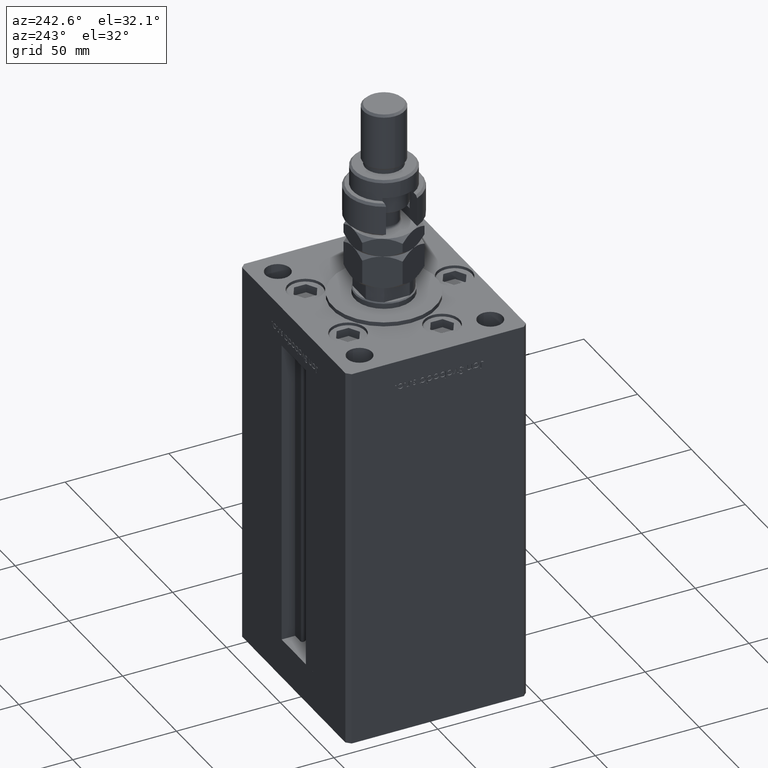
[diagram: clean part render]
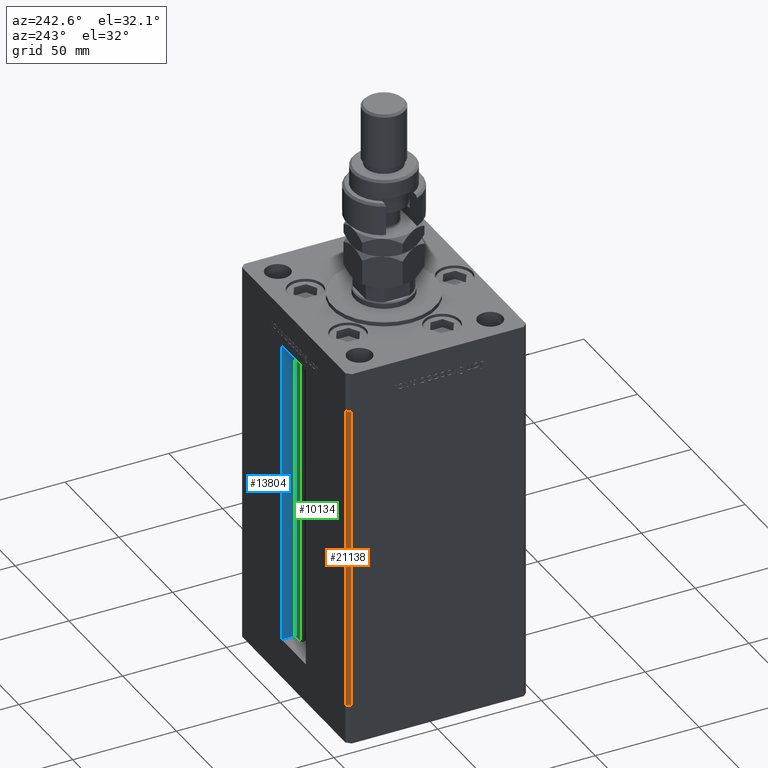
[diagram: same view with three faces highlighted in distinct colors, each labeled with its STEP entity id]
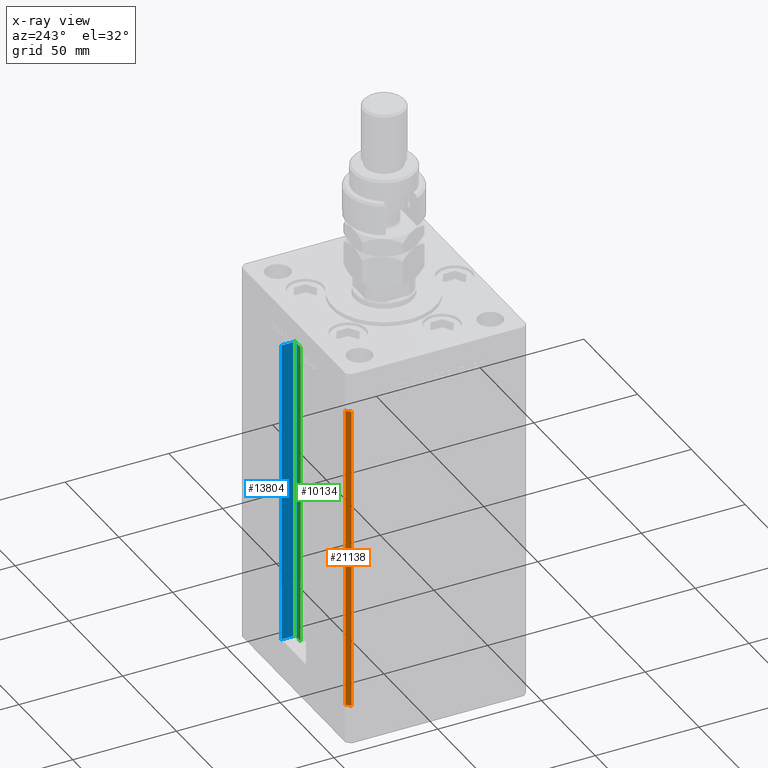
[diagram: x-ray of the same camera — body ghosted, the three highlighted faces saturated]
A machine part, auxiliary view with three faces highlighted in distinct colors.
The next image is the same camera in x-ray (body ghosted, the three faces saturated) — at least one of them is partly hidden behind the body in this view.
Their STEP definitions:

[orange] entity #21138 — the highlighted planar face has unit normal (0.7071, -0.7071, 0).
#1190 = DIRECTION ( 'NONE',  ( -0.000000000000000000, -0.000000000000000000, -1.000000000000000000 ) ) ;
#3993 = CARTESIAN_POINT ( 'NONE',  ( -50.00000000000001421, 41.49999999999999289, 0.000000000000000000 ) ) ;
#5504 = LINE ( 'NONE', #36056, #10196 ) ;
#6070 = ORIENTED_EDGE ( 'NONE', *, *, #31178, .F. ) ;
#7801 = EDGE_CURVE ( 'NONE', #24765, #50854, #10531, .T. ) ;
#10196 = VECTOR ( 'NONE', #47754, 1000.000000000000000 ) ;
#10531 = LINE ( 'NONE', #53069, #52205 ) ;
#11359 = EDGE_LOOP ( 'NONE', ( #31341, #14133, #6070, #18293 ) ) ;
#14133 = ORIENTED_EDGE ( 'NONE', *, *, #54902, .F. ) ;
#15982 = CARTESIAN_POINT ( 'NONE',  ( -48.00000000000000711, 43.50000000000000000, 148.5000000000000000 ) ) ;
#17386 = VECTOR ( 'NONE', #1190, 1000.000000000000000 ) ;
#18293 = ORIENTED_EDGE ( 'NONE', *, *, #35378, .T. ) ;
#18444 = CARTESIAN_POINT ( 'NONE',  ( -50.00000000000001421, 41.49999999999999289, 148.5000000000000000 ) ) ;
#21138 = ADVANCED_FACE ( 'NONE', ( #53545 ), #53811, .F. ) ;
#24362 = DIRECTION ( 'NONE',  ( -0.000000000000000000, -0.000000000000000000, -1.000000000000000000 ) ) ;
#24765 = VERTEX_POINT ( 'NONE', #34884 ) ;
#31178 = EDGE_CURVE ( 'NONE', #41898, #54899, #5504, .T. ) ;
#31341 = ORIENTED_EDGE ( 'NONE', *, *, #7801, .T. ) ;
#32693 = LINE ( 'NONE', #49938, #52450 ) ;
#33084 = AXIS2_PLACEMENT_3D ( 'NONE', #15982, #49359, #40994 ) ;
#34884 = CARTESIAN_POINT ( 'NONE',  ( -48.00000000000000711, 43.50000000000000000, 0.000000000000000000 ) ) ;
#35378 = EDGE_CURVE ( 'NONE', #41898, #24765, #32693, .T. ) ;
#36056 = CARTESIAN_POINT ( 'NONE',  ( -48.00000000000000711, 43.50000000000000000, 148.5000000000000000 ) ) ;
#38525 = CARTESIAN_POINT ( 'NONE',  ( -48.00000000000000711, 43.50000000000000000, 148.5000000000000000 ) ) ;
#40994 = DIRECTION ( 'NONE',  ( 0.7071067811865487940, 0.7071067811865463515, 0.000000000000000000 ) ) ;
#41898 = VERTEX_POINT ( 'NONE', #38525 ) ;
#43886 = DIRECTION ( 'NONE',  ( -0.7071067811865487940, -0.7071067811865463515, 0.000000000000000000 ) ) ;
#44262 = LINE ( 'NONE', #18444, #17386 ) ;
#47754 = DIRECTION ( 'NONE',  ( -0.7071067811865487940, -0.7071067811865463515, 0.000000000000000000 ) ) ;
#49359 = DIRECTION ( 'NONE',  ( 0.7071067811865463515, -0.7071067811865487940, 0.000000000000000000 ) ) ;
#49938 = CARTESIAN_POINT ( 'NONE',  ( -48.00000000000000711, 43.50000000000000000, 148.5000000000000000 ) ) ;
#50854 = VERTEX_POINT ( 'NONE', #3993 ) ;
#52093 = CARTESIAN_POINT ( 'NONE',  ( -50.00000000000001421, 41.49999999999999289, 148.5000000000000000 ) ) ;
#52205 = VECTOR ( 'NONE', #43886, 1000.000000000000000 ) ;
#52450 = VECTOR ( 'NONE', #24362, 1000.000000000000000 ) ;
#53069 = CARTESIAN_POINT ( 'NONE',  ( -48.00000000000000711, 43.50000000000000000, 0.000000000000000000 ) ) ;
#53545 = FACE_OUTER_BOUND ( 'NONE', #11359, .T. ) ;
#53811 = PLANE ( 'NONE',  #33084 ) ;
#54899 = VERTEX_POINT ( 'NONE', #52093 ) ;
#54902 = EDGE_CURVE ( 'NONE', #54899, #50854, #44262, .T. ) ;

[blue] entity #13804 — the highlighted planar face has unit normal (1, 0, 0).
#638 = LINE ( 'NONE', #47910, #9976 ) ;
#5230 = EDGE_LOOP ( 'NONE', ( #46722, #8976, #39250, #30753 ) ) ;
#6139 = CARTESIAN_POINT ( 'NONE',  ( 11.24999999999999822, 36.99999999999999289, 0.000000000000000000 ) ) ;
#7754 = VERTEX_POINT ( 'NONE', #26389 ) ;
#8929 = DIRECTION ( 'NONE',  ( 1.000000000000000000, -0.000000000000000000, 0.000000000000000000 ) ) ;
#8976 = ORIENTED_EDGE ( 'NONE', *, *, #44195, .F. ) ;
#9215 = DIRECTION ( 'NONE',  ( 0.000000000000000000, 0.000000000000000000, -1.000000000000000000 ) ) ;
#9976 = VECTOR ( 'NONE', #13746, 1000.000000000000000 ) ;
#13511 = VECTOR ( 'NONE', #31165, 1000.000000000000000 ) ;
#13746 = DIRECTION ( 'NONE',  ( 0.000000000000000000, 1.000000000000000000, 0.000000000000000000 ) ) ;
#13804 = ADVANCED_FACE ( 'NONE', ( #34788 ), #17833, .F. ) ;
#14960 = CARTESIAN_POINT ( 'NONE',  ( 11.24999999999999822, 36.99999999999999289, 148.5000000000000000 ) ) ;
#17411 = VERTEX_POINT ( 'NONE', #14960 ) ;
#17833 = PLANE ( 'NONE',  #25751 ) ;
#18862 = EDGE_CURVE ( 'NONE', #30732, #17411, #26653, .T. ) ;
#21376 = CARTESIAN_POINT ( 'NONE',  ( 11.24999999999999822, 36.99999999999999289, 0.000000000000000000 ) ) ;
#22376 = VECTOR ( 'NONE', #30968, 1000.000000000000000 ) ;
#23323 = EDGE_CURVE ( 'NONE', #7754, #30732, #39300, .T. ) ;
#25751 = AXIS2_PLACEMENT_3D ( 'NONE', #35069, #8929, #9215 ) ;
#26389 = CARTESIAN_POINT ( 'NONE',  ( 11.24999999999999822, 43.50000000000000000, 0.000000000000000000 ) ) ;
#26653 = LINE ( 'NONE', #51697, #29439 ) ;
#29439 = VECTOR ( 'NONE', #30277, 1000.000000000000000 ) ;
#30277 = DIRECTION ( 'NONE',  ( -0.000000000000000000, -1.000000000000000000, 0.000000000000000000 ) ) ;
#30732 = VERTEX_POINT ( 'NONE', #52001 ) ;
#30753 = ORIENTED_EDGE ( 'NONE', *, *, #18862, .F. ) ;
#30968 = DIRECTION ( 'NONE',  ( -0.000000000000000000, -0.000000000000000000, 1.000000000000000000 ) ) ;
#31165 = DIRECTION ( 'NONE',  ( -0.000000000000000000, -0.000000000000000000, 1.000000000000000000 ) ) ;
#34788 = FACE_OUTER_BOUND ( 'NONE', #5230, .T. ) ;
#35069 = CARTESIAN_POINT ( 'NONE',  ( 11.24999999999999822, 36.99999999999999289, 0.000000000000000000 ) ) ;
#39250 = ORIENTED_EDGE ( 'NONE', *, *, #44577, .T. ) ;
#39300 = LINE ( 'NONE', #47101, #22376 ) ;
#40319 = LINE ( 'NONE', #6139, #13511 ) ;
#44195 = EDGE_CURVE ( 'NONE', #53594, #7754, #638, .T. ) ;
#44577 = EDGE_CURVE ( 'NONE', #53594, #17411, #40319, .T. ) ;
#46722 = ORIENTED_EDGE ( 'NONE', *, *, #23323, .F. ) ;
#47101 = CARTESIAN_POINT ( 'NONE',  ( 11.24999999999999822, 43.50000000000000000, 0.000000000000000000 ) ) ;
#47910 = CARTESIAN_POINT ( 'NONE',  ( 11.24999999999999822, 36.99999999999999289, 0.000000000000000000 ) ) ;
#51697 = CARTESIAN_POINT ( 'NONE',  ( 11.24999999999999822, 0.000000000000000000, 148.5000000000000000 ) ) ;
#52001 = CARTESIAN_POINT ( 'NONE',  ( 11.24999999999999112, 43.50000000000000000, 148.5000000000000000 ) ) ;
#53594 = VERTEX_POINT ( 'NONE', #21376 ) ;

[green] entity #10134 — the highlighted planar face has unit normal (0, -1, 0).
#2707 = VECTOR ( 'NONE', #17848, 1000.000000000000000 ) ;
#3271 = LINE ( 'NONE', #54153, #5218 ) ;
#5218 = VECTOR ( 'NONE', #37719, 1000.000000000000000 ) ;
#6139 = CARTESIAN_POINT ( 'NONE',  ( 11.24999999999999822, 36.99999999999999289, 0.000000000000000000 ) ) ;
#6188 = ORIENTED_EDGE ( 'NONE', *, *, #44577, .F. ) ;
#6366 = EDGE_CURVE ( 'NONE', #51610, #53594, #3271, .T. ) ;
#7583 = DIRECTION ( 'NONE',  ( 0.000000000000000000, -1.000000000000000000, 0.000000000000000000 ) ) ;
#8582 = EDGE_LOOP ( 'NONE', ( #6188, #32230, #26747, #54674 ) ) ;
#9658 = AXIS2_PLACEMENT_3D ( 'NONE', #49565, #7583, #50114 ) ;
#10134 = ADVANCED_FACE ( 'NONE', ( #32594 ), #45656, .F. ) ;
#10292 = LINE ( 'NONE', #18906, #39048 ) ;
#13511 = VECTOR ( 'NONE', #31165, 1000.000000000000000 ) ;
#14960 = CARTESIAN_POINT ( 'NONE',  ( 11.24999999999999822, 36.99999999999999289, 148.5000000000000000 ) ) ;
#15008 = DIRECTION ( 'NONE',  ( -0.000000000000000000, -0.000000000000000000, 1.000000000000000000 ) ) ;
#16014 = CARTESIAN_POINT ( 'NONE',  ( 6.183333333333997928, 36.99999999999999289, 0.000000000000000000 ) ) ;
#17411 = VERTEX_POINT ( 'NONE', #14960 ) ;
#17848 = DIRECTION ( 'NONE',  ( -1.000000000000000000, 0.000000000000000000, 0.000000000000000000 ) ) ;
#18906 = CARTESIAN_POINT ( 'NONE',  ( 6.183333333333997928, 36.99999999999999289, 0.000000000000000000 ) ) ;
#21376 = CARTESIAN_POINT ( 'NONE',  ( 11.24999999999999822, 36.99999999999999289, 0.000000000000000000 ) ) ;
#26747 = ORIENTED_EDGE ( 'NONE', *, *, #35026, .T. ) ;
#31165 = DIRECTION ( 'NONE',  ( -0.000000000000000000, -0.000000000000000000, 1.000000000000000000 ) ) ;
#31446 = LINE ( 'NONE', #43130, #2707 ) ;
#32230 = ORIENTED_EDGE ( 'NONE', *, *, #6366, .F. ) ;
#32594 = FACE_OUTER_BOUND ( 'NONE', #8582, .T. ) ;
#35026 = EDGE_CURVE ( 'NONE', #51610, #39799, #10292, .T. ) ;
#37719 = DIRECTION ( 'NONE',  ( 1.000000000000000000, 0.000000000000000000, 0.000000000000000000 ) ) ;
#39048 = VECTOR ( 'NONE', #15008, 1000.000000000000000 ) ;
#39462 = EDGE_CURVE ( 'NONE', #17411, #39799, #31446, .T. ) ;
#39799 = VERTEX_POINT ( 'NONE', #49429 ) ;
#40319 = LINE ( 'NONE', #6139, #13511 ) ;
#43130 = CARTESIAN_POINT ( 'NONE',  ( 0.000000000000000000, 36.99999999999999289, 148.5000000000000000 ) ) ;
#44577 = EDGE_CURVE ( 'NONE', #53594, #17411, #40319, .T. ) ;
#45656 = PLANE ( 'NONE',  #9658 ) ;
#49429 = CARTESIAN_POINT ( 'NONE',  ( 6.183333333333997928, 36.99999999999999289, 148.5000000000000000 ) ) ;
#49565 = CARTESIAN_POINT ( 'NONE',  ( 6.183333333333997928, 36.99999999999999289, 0.000000000000000000 ) ) ;
#50114 = DIRECTION ( 'NONE',  ( 0.000000000000000000, -0.000000000000000000, -1.000000000000000000 ) ) ;
#51610 = VERTEX_POINT ( 'NONE', #16014 ) ;
#53594 = VERTEX_POINT ( 'NONE', #21376 ) ;
#54153 = CARTESIAN_POINT ( 'NONE',  ( 6.183333333333997928, 36.99999999999999289, 0.000000000000000000 ) ) ;
#54674 = ORIENTED_EDGE ( 'NONE', *, *, #39462, .F. ) ;